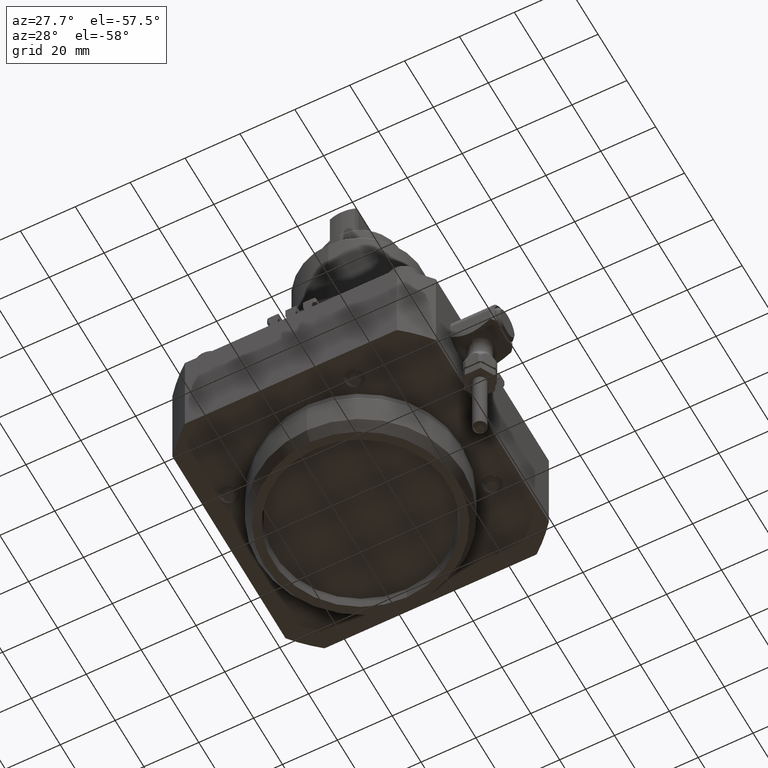
[diagram: clean part render]
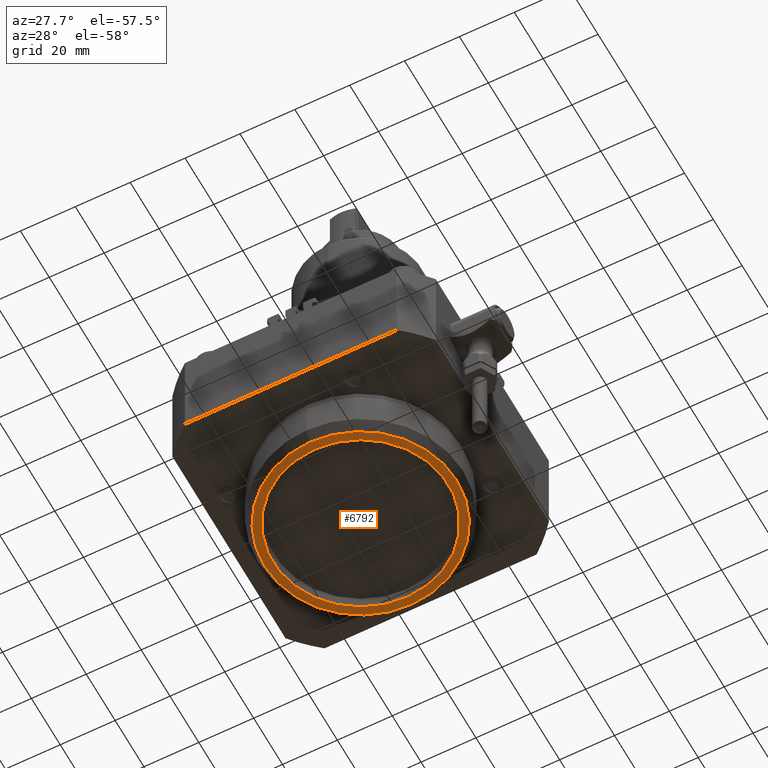
[diagram: same view with one face highlighted and labeled with its STEP entity id]
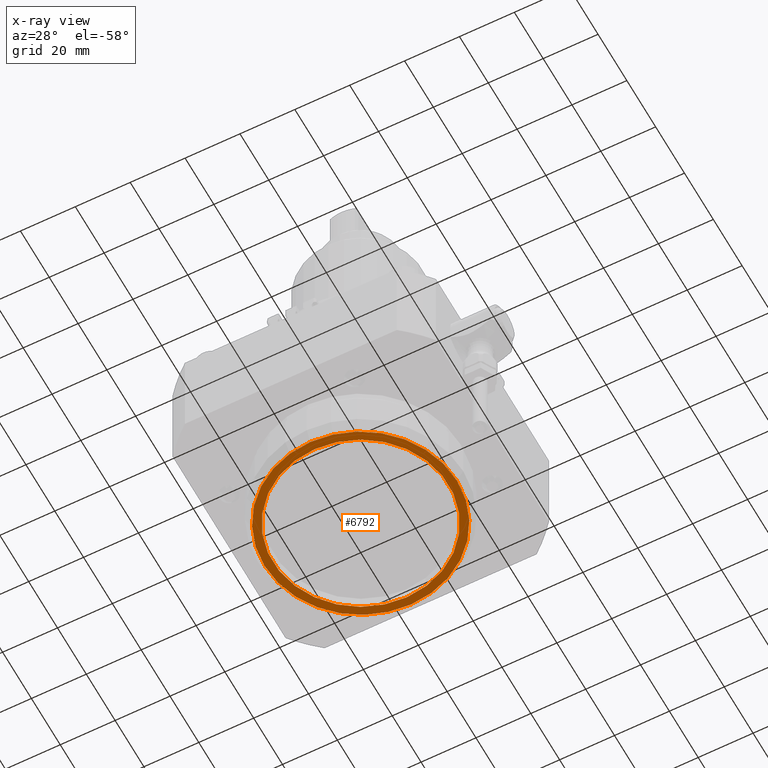
[diagram: x-ray of the same camera — body ghosted, the highlighted face saturated]
A machine part, auxiliary view. The second image highlights one B-rep face of the part: STEP entity #6792.
The next image is the same camera in x-ray: the body ghosted, the highlighted face saturated — about 0% of this face is hidden behind the body in this view.
In plain terms, the highlighted planar face has unit normal (0, -0, -1).
Its self-contained STEP definition (entity closure, byte-faithful):
#6724=CARTESIAN_POINT('',(-0.,-35.090598923,-57.));
#6725=VERTEX_POINT('',#6724);
#6732=CARTESIAN_POINT('',(0.,35.090598923,-57.));
#6733=VERTEX_POINT('',#6732);
#6734=CARTESIAN_POINT('',(-0.,-0.,-57.));
#6735=DIRECTION('',(-0.,0.,1.));
#6736=DIRECTION('',(-0.,-1.,0.));
#6737=AXIS2_PLACEMENT_3D('',#6734,#6735,#6736);
#6738=CIRCLE('',#6737,35.090598923);
#6739=EDGE_CURVE('',#6725,#6733,#6738,.T.);
#6757=CARTESIAN_POINT('',(0.,18.7,-57.));
#6758=DIRECTION('',(0.,-0.,-1.));
#6759=DIRECTION('',(-1.,0.,-0.));
#6760=AXIS2_PLACEMENT_3D('',#6757,#6758,#6759);
#6761=PLANE('',#6760);
#6762=ORIENTED_EDGE('',*,*,#6739,.F.);
#6763=CARTESIAN_POINT('',(-0.,-0.,-57.));
#6764=DIRECTION('',(-0.,0.,1.));
#6765=DIRECTION('',(-0.,-1.,0.));
#6766=AXIS2_PLACEMENT_3D('',#6763,#6764,#6765);
#6767=CIRCLE('',#6766,35.090598923);
#6768=EDGE_CURVE('',#6733,#6725,#6767,.T.);
#6769=ORIENTED_EDGE('',*,*,#6768,.F.);
#6770=EDGE_LOOP('',(#6762,#6769));
#6771=FACE_BOUND('',#6770,.T.);
#6772=CARTESIAN_POINT('',(-0.,-32.,-57.));
#6773=VERTEX_POINT('',#6772);
#6774=CARTESIAN_POINT('',(0.,32.,-57.));
#6775=VERTEX_POINT('',#6774);
#6776=CARTESIAN_POINT('',(-0.,-0.,-57.));
#6777=DIRECTION('',(-0.,0.,1.));
#6778=DIRECTION('',(0.,1.,-0.));
#6779=AXIS2_PLACEMENT_3D('',#6776,#6777,#6778);
#6780=CIRCLE('',#6779,32.);
#6781=EDGE_CURVE('',#6773,#6775,#6780,.T.);
#6782=ORIENTED_EDGE('',*,*,#6781,.T.);
#6783=CARTESIAN_POINT('',(-0.,-0.,-57.));
#6784=DIRECTION('',(-0.,0.,1.));
#6785=DIRECTION('',(0.,1.,-0.));
#6786=AXIS2_PLACEMENT_3D('',#6783,#6784,#6785);
#6787=CIRCLE('',#6786,32.);
#6788=EDGE_CURVE('',#6775,#6773,#6787,.T.);
#6789=ORIENTED_EDGE('',*,*,#6788,.T.);
#6790=EDGE_LOOP('',(#6782,#6789));
#6791=FACE_BOUND('',#6790,.T.);
#6792=ADVANCED_FACE('',(#6771,#6791),#6761,.T.);